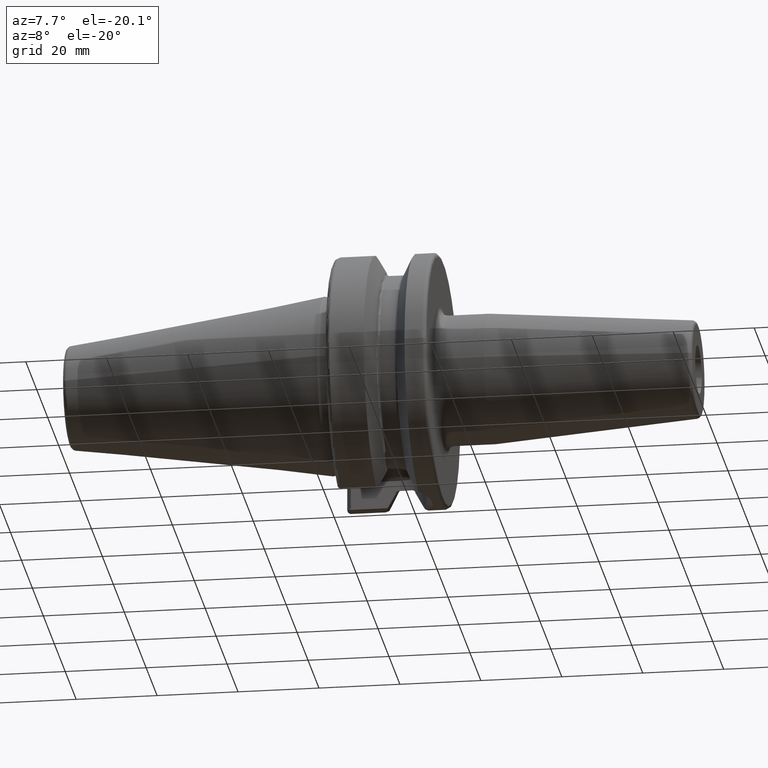
[diagram: clean part render]
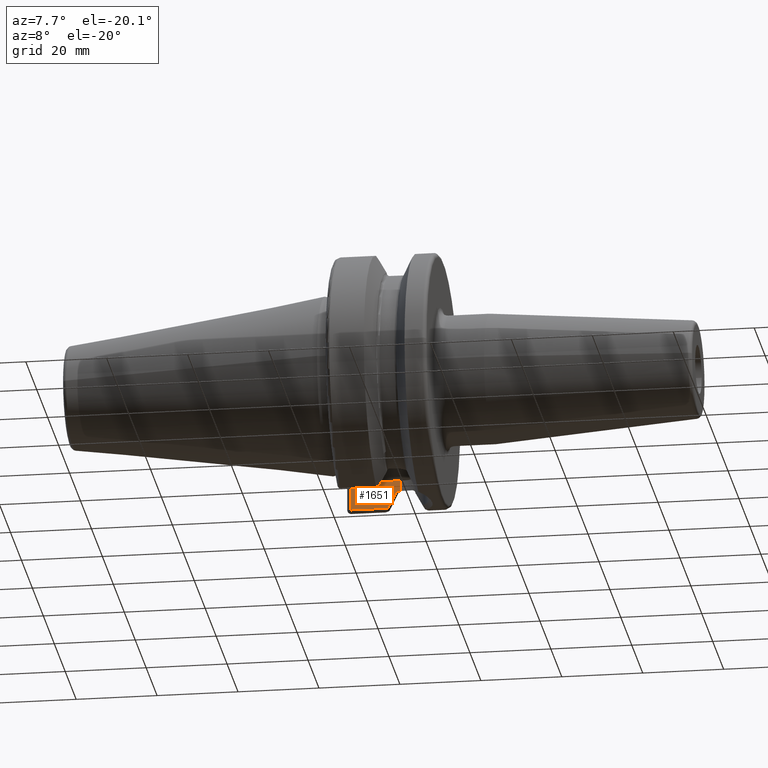
[diagram: same view with one face highlighted and labeled with its STEP entity id]
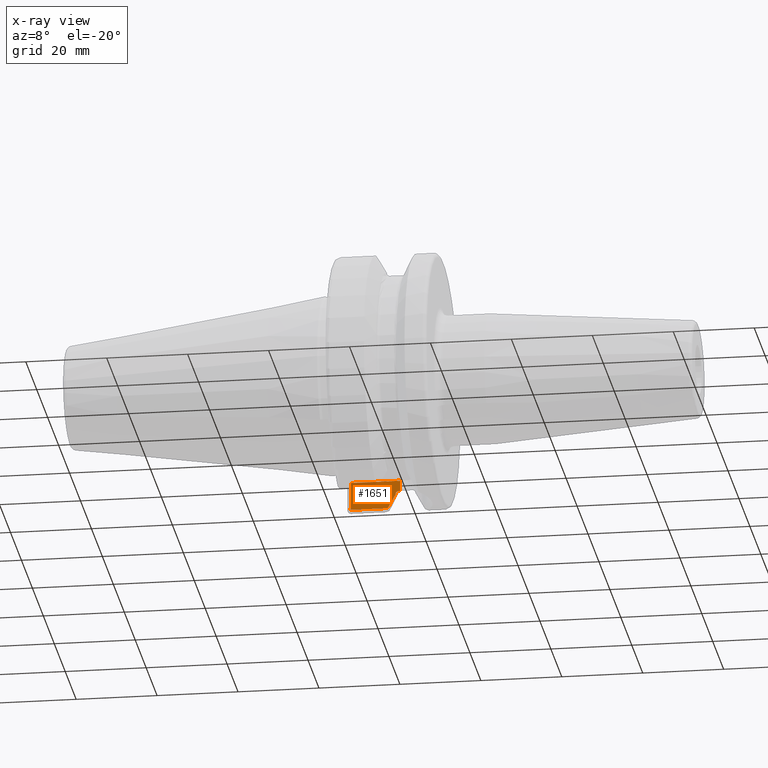
[diagram: x-ray of the same camera — body ghosted, the highlighted face saturated]
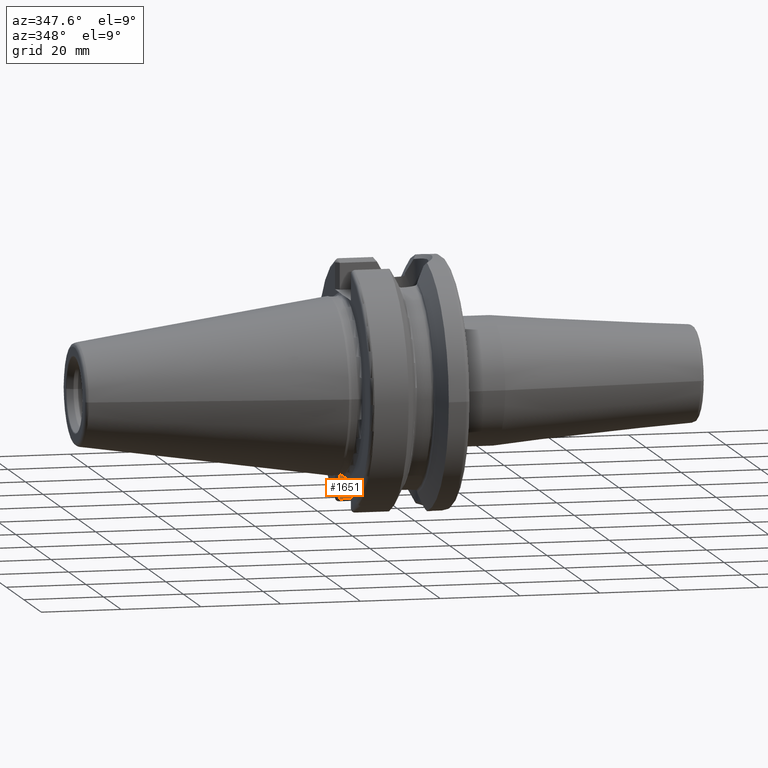
[diagram: same view with one face highlighted and labeled with its STEP entity id]
A machine part, auxiliary view. The second image highlights one B-rep face of the part: STEP entity #1651.
The next image is the same camera in x-ray: the body ghosted, the highlighted face saturated — about 6% of this face is hidden behind the body in this view.
A second angle (auxiliary view) of the same face is appended — the face is thin or edge-on in the first view.
In plain terms, the highlighted planar face has unit normal (0, 1, 0).
Its self-contained STEP definition (entity closure, byte-faithful):
#151=DIRECTION('',(0.E0,6.771558882017E-14,-1.E0));
#152=VECTOR('',#151,5.246522611263E-2);
#153=CARTESIAN_POINT('',(1.40625E1,8.095E0,-2.588892813540E1));
#154=LINE('',#153,#152);
#155=CARTESIAN_POINT('',(1.212089730171E1,8.095E0,-2.944558475789E1));
#156=CARTESIAN_POINT('',(1.234623272522E1,8.095E0,-2.904081227564E1));
#157=CARTESIAN_POINT('',(1.279052069613E1,8.095E0,-2.824155997645E1));
#158=CARTESIAN_POINT('',(1.343761208926E1,8.095E0,-2.707376738597E1));
#159=CARTESIAN_POINT('',(1.385633764716E1,8.095E0,-2.631545873157E1));
#160=CARTESIAN_POINT('',(1.40625E1,8.095E0,-2.594139336151E1));
#162=DIRECTION('',(-9.999999999985E-1,-1.020124403018E-6,-1.371373609435E-6));
#163=VECTOR('',#162,9.120897357077E0);
#164=CARTESIAN_POINT('',(1.212089730171E1,8.095E0,-2.944558475789E1));
#165=LINE('',#164,#163);
#166=CARTESIAN_POINT('',(2.999999944646E0,8.094990695550E0,-2.944559726605E1));
#167=CARTESIAN_POINT('',(2.981463392569E0,8.094990695550E0,-2.944551523315E1));
#168=CARTESIAN_POINT('',(2.947058825089E0,8.095004307918E0,-2.943767121305E1));
#169=CARTESIAN_POINT('',(2.898195259296E0,8.094998878961E0,-2.939867677323E1));
#170=CARTESIAN_POINT('',(2.867841466663E0,8.095000176238E0,-2.933639810267E1));
#171=CARTESIAN_POINT('',(2.863816327591E0,8.095000416087E0,-2.926079582073E1));
#172=CARTESIAN_POINT('',(2.888635872286E0,8.094998159415E0,-2.918634558002E1));
#173=CARTESIAN_POINT('',(2.939061398627E0,8.095006946252E0,-2.912729866301E1));
#174=CARTESIAN_POINT('',(2.978199963328E0,8.094985019135E0,-2.910625664403E1));
#175=CARTESIAN_POINT('',(2.999984999343E0,8.094985019135E0,-2.909924259728E1));
#177=DIRECTION('',(2.255994819562E-6,2.253018316476E-6,9.999999999949E-1));
#178=VECTOR('',#177,6.649242597316E0);
#179=CARTESIAN_POINT('',(2.999984999343E0,8.094985019135E0,-2.909924259728E1));
#180=LINE('',#179,#178);
#181=DIRECTION('',(0.E0,0.E0,-1.E0));
#182=VECTOR('',#181,2.652023822792E0);
#183=CARTESIAN_POINT('',(1.5155E1,8.095E0,-2.245E1));
#184=LINE('',#183,#182);
#185=DIRECTION('',(1.E0,2.074577330686E-14,0.E0));
#186=VECTOR('',#185,3.425E-1);
#187=CARTESIAN_POINT('',(1.48125E1,8.095E0,-2.510202382279E1));
#188=LINE('',#187,#186);
#189=CARTESIAN_POINT('',(1.40625E1,8.095E0,-2.588892813540E1));
#190=CARTESIAN_POINT('',(1.40625E1,8.095E0,-2.583126388175E1));
#191=CARTESIAN_POINT('',(1.407435820302E1,8.095E0,-2.571884424401E1));
#192=CARTESIAN_POINT('',(1.412637479973E1,8.095E0,-2.555605345243E1));
#193=CARTESIAN_POINT('',(1.421189057239E1,8.095E0,-2.540775968571E1));
#194=CARTESIAN_POINT('',(1.432287532809E1,8.095E0,-2.528495902414E1));
#195=CARTESIAN_POINT('',(1.446091461049E1,8.095E0,-2.518643315091E1));
#196=CARTESIAN_POINT('',(1.462231567214E1,8.095E0,-2.512013808222E1));
#197=CARTESIAN_POINT('',(1.474638827310E1,8.095E0,-2.510202382279E1));
#198=CARTESIAN_POINT('',(1.48125E1,8.095E0,-2.510202382279E1));
#742=DIRECTION('',(-1.E0,0.E0,0.E0));
#743=VECTOR('',#742,1.2155E1);
#744=CARTESIAN_POINT('',(1.5155E1,8.095E0,-2.245E1));
#745=LINE('',#744,#743);
#1183=CARTESIAN_POINT('',(1.40625E1,8.095E0,-2.588892813540E1));
#1185=VERTEX_POINT('',#1183);
#1191=CARTESIAN_POINT('',(1.48125E1,8.095E0,-2.510202382279E1));
#1193=VERTEX_POINT('',#1191);
#1218=CARTESIAN_POINT('',(1.40625E1,8.095E0,-2.594139336151E1));
#1220=VERTEX_POINT('',#1218);
#1317=CARTESIAN_POINT('',(1.5155E1,8.095E0,-2.245E1));
#1319=VERTEX_POINT('',#1317);
#1332=CARTESIAN_POINT('',(1.5155E1,8.095E0,-2.510202382279E1));
#1333=VERTEX_POINT('',#1332);
#1334=VERTEX_POINT('',#155);
#1368=CARTESIAN_POINT('',(2.999984999343E0,8.094985019135E0,-2.909924259728E1));
#1369=CARTESIAN_POINT('',(3.E0,8.095E0,-2.245E1));
#1370=VERTEX_POINT('',#1368);
#1371=VERTEX_POINT('',#1369);
#1385=CARTESIAN_POINT('',(2.999999944646E0,8.094990695550E0,-2.944559726605E1));
#1386=VERTEX_POINT('',#1385);
#1627=CARTESIAN_POINT('',(1.5155E1,8.095E0,-2.245E1));
#1628=DIRECTION('',(0.E0,1.E0,0.E0));
#1629=DIRECTION('',(-1.E0,0.E0,0.E0));
#1630=AXIS2_PLACEMENT_3D('',#1627,#1628,#1629);
#1631=PLANE('',#1630);
#1633=ORIENTED_EDGE('',*,*,#1632,.T.);
#1635=ORIENTED_EDGE('',*,*,#1634,.F.);
#1637=ORIENTED_EDGE('',*,*,#1636,.T.);
#1639=ORIENTED_EDGE('',*,*,#1638,.T.);
#1640=ORIENTED_EDGE('',*,*,#1617,.T.);
#1642=ORIENTED_EDGE('',*,*,#1641,.F.);
#1644=ORIENTED_EDGE('',*,*,#1643,.T.);
#1646=ORIENTED_EDGE('',*,*,#1645,.F.);
#1648=ORIENTED_EDGE('',*,*,#1647,.F.);
#1649=EDGE_LOOP('',(#1633,#1635,#1637,#1639,#1640,#1642,#1644,#1646,#1648));
#1650=FACE_OUTER_BOUND('',#1649,.F.);
#1651=ADVANCED_FACE('',(#1650),#1631,.F.);
#161=B_SPLINE_CURVE_WITH_KNOTS('',3,(#155,#156,#157,#158,#159,#160),
.UNSPECIFIED.,.F.,.F.,(4,1,1,4),(0.E0,3.333333333333E-1,6.666666666667E-1,1.E0),
.UNSPECIFIED.);
#176=B_SPLINE_CURVE_WITH_KNOTS('',3,(#166,#167,#168,#169,#170,#171,#172,#173,
#174,#175),.UNSPECIFIED.,.F.,.F.,(4,1,1,1,1,1,1,4),(0.E0,1.428571428571E-1,
2.857142857143E-1,4.285714285714E-1,5.714285714286E-1,7.142857142857E-1,
8.571428571429E-1,1.E0),.UNSPECIFIED.);
#199=B_SPLINE_CURVE_WITH_KNOTS('',3,(#189,#190,#191,#192,#193,#194,#195,#196,
#197,#198),.UNSPECIFIED.,.F.,.F.,(4,1,1,1,1,1,1,4),(0.E0,1.428571428571E-1,
2.857142857143E-1,4.285714285714E-1,5.714285714286E-1,7.142857142857E-1,
8.571428571429E-1,1.E0),.UNSPECIFIED.);
#1617=EDGE_CURVE('',#1370,#1371,#180,.T.);
#1632=EDGE_CURVE('',#1185,#1220,#154,.T.);
#1634=EDGE_CURVE('',#1334,#1220,#161,.T.);
#1636=EDGE_CURVE('',#1334,#1386,#165,.T.);
#1638=EDGE_CURVE('',#1386,#1370,#176,.T.);
#1641=EDGE_CURVE('',#1319,#1371,#745,.T.);
#1643=EDGE_CURVE('',#1319,#1333,#184,.T.);
#1645=EDGE_CURVE('',#1193,#1333,#188,.T.);
#1647=EDGE_CURVE('',#1185,#1193,#199,.T.);